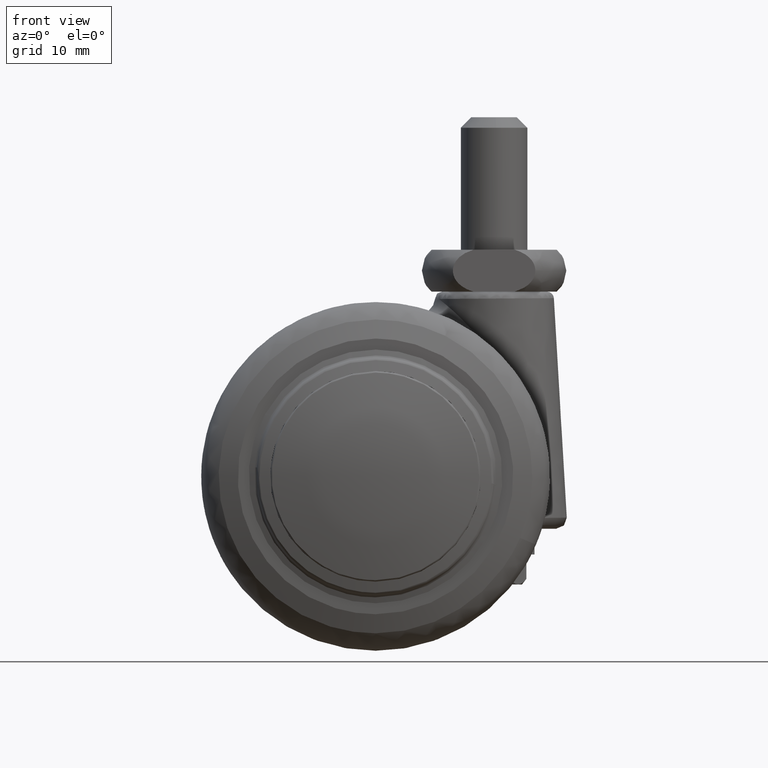
[diagram: clean part render]
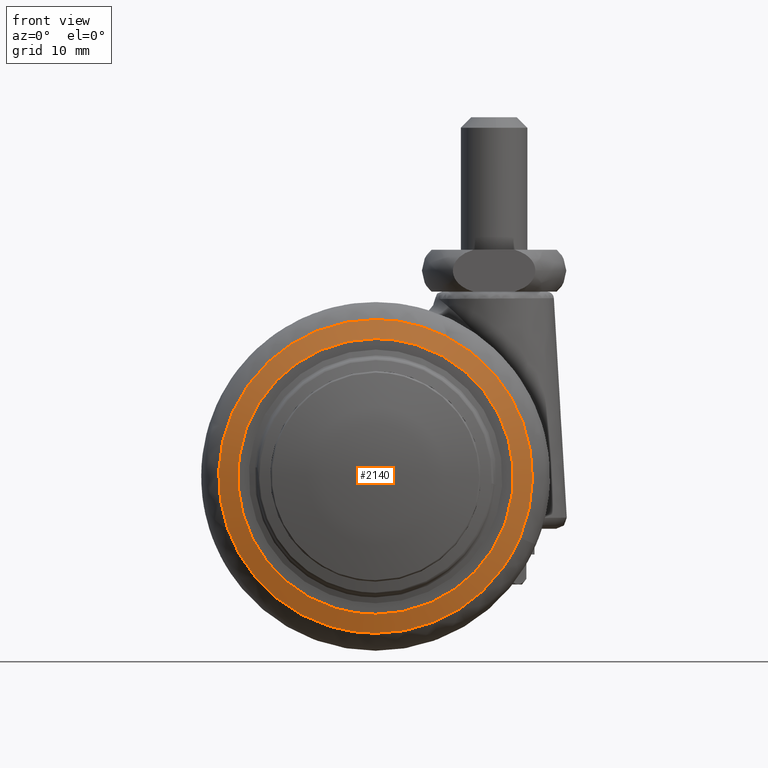
[diagram: same view with one face highlighted and labeled with its STEP entity id]
A machine part, front view. The second image highlights one B-rep face of the part: STEP entity #2140.
In plain terms, the highlighted face is a freeform B-spline surface patch.
Its self-contained STEP definition (entity closure, byte-faithful):
#1491=CARTESIAN_POINT('',(9.975672701248211,-20.052650238675671,20.167695820285779));
#1492=VERTEX_POINT('',#1491);
#1493=CARTESIAN_POINT('',(0.0,-20.052650239281650,22.500000010546600));
#1494=VERTEX_POINT('',#1493);
#1495=CARTESIAN_POINT('',(9.975672701248211,-20.052650238675664,20.167695820285783));
#1496=CARTESIAN_POINT('',(5.260481765112745,-20.052650239281647,22.500000010546604));
#1497=CARTESIAN_POINT('',(0.0,-20.052650239281650,22.500000010546600));
#1505=(BOUNDED_CURVE()B_SPLINE_CURVE(2,(#1495,#1496,#1497),.UNSPECIFIED.,.F.,.U.)B_SPLINE_CURVE_WITH_KNOTS((3,3),(0.424637790835269,0.500000000000000),.UNSPECIFIED.)CURVE()GEOMETRIC_REPRESENTATION_ITEM()RATIONAL_B_SPLINE_CURVE((0.876646594192813,0.911707679923397,1.0))REPRESENTATION_ITEM(''));
#1506=EDGE_CURVE('',#1492,#1494,#1505,.T.);
#1526=CARTESIAN_POINT('',(20.705216575500302,-20.052650239253548,-8.805907507993847));
#1527=VERTEX_POINT('',#1526);
#1541=CARTESIAN_POINT('',(0.0,-20.052650239281650,-22.500000010546589));
#1542=VERTEX_POINT('',#1541);
#1543=CARTESIAN_POINT('',(0.0,-20.052650239281650,-22.500000010546589));
#1544=CARTESIAN_POINT('',(14.881132990319578,-20.052650239281647,-22.500000010546600));
#1545=CARTESIAN_POINT('',(20.705216575500302,-20.052650239253552,-8.805907507993847));
#1553=(BOUNDED_CURVE()B_SPLINE_CURVE(2,(#1543,#1544,#1545),.UNSPECIFIED.,.F.,.U.)B_SPLINE_CURVE_WITH_KNOTS((3,3),(0.0,0.183550134662979),.UNSPECIFIED.)CURVE()GEOMETRIC_REPRESENTATION_ITEM()RATIONAL_B_SPLINE_CURVE((1.0,0.784957640979670,0.885683713610749))REPRESENTATION_ITEM(''));
#1554=EDGE_CURVE('',#1542,#1527,#1553,.T.);
#1556=CARTESIAN_POINT('',(0.0,-20.052650239281650,22.500000010546600));
#1557=CARTESIAN_POINT('',(-22.500000010546600,-20.052650239281654,22.500000010546600));
#1558=CARTESIAN_POINT('',(-22.500000010546600,-20.052650239281650,1.789254E-015));
#1559=CARTESIAN_POINT('',(-22.500000010546600,-20.052650239281654,-22.500000010546600));
#1560=CARTESIAN_POINT('',(0.0,-20.052650239281650,-22.500000010546589));
#1568=(BOUNDED_CURVE()B_SPLINE_CURVE(2,(#1556,#1557,#1558,#1559,#1560),.UNSPECIFIED.,.F.,.U.)B_SPLINE_CURVE_WITH_KNOTS((3,2,3),(0.500000000000000,0.750000000000000,1.0),.UNSPECIFIED.)CURVE()GEOMETRIC_REPRESENTATION_ITEM()RATIONAL_B_SPLINE_CURVE((1.0,0.707106781186547,1.0,0.707106781186547,1.0))REPRESENTATION_ITEM(''));
#1569=EDGE_CURVE('',#1494,#1542,#1568,.T.);
#1591=CARTESIAN_POINT('',(20.705216575500298,-20.052650239253545,-8.805907507993847));
#1592=CARTESIAN_POINT('',(22.500000010546593,-20.052650239281647,-4.585856400647058));
#1593=CARTESIAN_POINT('',(22.500000010546600,-20.052650239281650,1.789254E-015));
#1594=CARTESIAN_POINT('',(22.500000010546596,-20.052650239281643,13.972709978116622));
#1595=CARTESIAN_POINT('',(9.975672701248211,-20.052650238675664,20.167695820285783));
#1603=(BOUNDED_CURVE()B_SPLINE_CURVE(2,(#1591,#1592,#1593,#1594,#1595),.UNSPECIFIED.,.F.,.U.)B_SPLINE_CURVE_WITH_KNOTS((3,2,3),(0.183550134662979,0.250000000000000,0.424637790835269),.UNSPECIFIED.)CURVE()GEOMETRIC_REPRESENTATION_ITEM()RATIONAL_B_SPLINE_CURVE((0.885683713610749,0.922149140206877,1.0,0.795399101263150,0.876646594192813))REPRESENTATION_ITEM(''));
#1604=EDGE_CURVE('',#1527,#1492,#1603,.T.);
#2065=CARTESIAN_POINT('',(0.0,-21.081931999999899,-19.765886228730452));
#2066=VERTEX_POINT('',#2065);
#2067=CARTESIAN_POINT('',(0.0,-21.081931999999899,19.765886228730459));
#2068=VERTEX_POINT('',#2067);
#2069=CARTESIAN_POINT('',(0.0,-21.081931999999899,-19.765886228730452));
#2070=CARTESIAN_POINT('',(19.765886228730455,-21.081931999999892,-19.765886228730455));
#2071=CARTESIAN_POINT('',(19.765886228730452,-21.081931999999899,1.789254E-015));
#2072=CARTESIAN_POINT('',(19.765886228730455,-21.081931999999892,19.765886228730455));
#2073=CARTESIAN_POINT('',(0.0,-21.081931999999899,19.765886228730459));
#2081=(BOUNDED_CURVE()B_SPLINE_CURVE(2,(#2069,#2070,#2071,#2072,#2073),.UNSPECIFIED.,.F.,.U.)B_SPLINE_CURVE_WITH_KNOTS((3,2,3),(0.0,0.250000000000000,0.500000000000000),.UNSPECIFIED.)CURVE()GEOMETRIC_REPRESENTATION_ITEM()RATIONAL_B_SPLINE_CURVE((1.0,0.707106781186548,1.0,0.707106781186548,1.0))REPRESENTATION_ITEM(''));
#2082=EDGE_CURVE('',#2066,#2068,#2081,.T.);
#2084=CARTESIAN_POINT('',(0.0,-21.081931999999899,19.765886228730459));
#2085=CARTESIAN_POINT('',(-19.765886228730455,-21.081931999999892,19.765886228730455));
#2086=CARTESIAN_POINT('',(-19.765886228730452,-21.081931999999899,1.789254E-015));
#2087=CARTESIAN_POINT('',(-19.765886228730455,-21.081931999999892,-19.765886228730455));
#2088=CARTESIAN_POINT('',(0.0,-21.081931999999899,-19.765886228730452));
#2096=(BOUNDED_CURVE()B_SPLINE_CURVE(2,(#2084,#2085,#2086,#2087,#2088),.UNSPECIFIED.,.F.,.U.)B_SPLINE_CURVE_WITH_KNOTS((3,2,3),(0.500000000000000,0.750000000000000,1.0),.UNSPECIFIED.)CURVE()GEOMETRIC_REPRESENTATION_ITEM()RATIONAL_B_SPLINE_CURVE((1.0,0.707106781186548,1.0,0.707106781186548,1.0))REPRESENTATION_ITEM(''));
#2097=EDGE_CURVE('',#2068,#2066,#2096,.T.);
#2106=CARTESIAN_POINT('',(-23.529031152137861,-14.358802987607762,-23.529032246445652));
#2107=CARTESIAN_POINT('',(-12.279879532431531,-19.174364121992451,-24.559760207108795));
#2108=CARTESIAN_POINT('',(12.279867601254651,-19.174364121992451,-24.559760207108795));
#2109=CARTESIAN_POINT('',(23.529010210099933,-14.358811952515842,-23.529034165304342));
#2110=CARTESIAN_POINT('',(-24.559759164938963,-19.174364589547135,-12.279880153592352));
#2111=CARTESIAN_POINT('',(-12.842464883672150,-24.431162000000029,-12.842465480960200));
#2112=CARTESIAN_POINT('',(12.842452405885240,-24.431162000000029,-12.842465480960200));
#2113=CARTESIAN_POINT('',(24.559737393241551,-19.174374357104270,-12.279881198921638));
#2114=CARTESIAN_POINT('',(-24.559759164938963,-19.174364589547135,12.279879656306701));
#2115=CARTESIAN_POINT('',(-12.842464883672140,-24.431162000000029,12.842464960892110));
#2116=CARTESIAN_POINT('',(12.842452405885240,-24.431162000000029,12.842464960892110));
#2117=CARTESIAN_POINT('',(24.559737393241551,-19.174374357104270,12.279880701635944));
#2118=CARTESIAN_POINT('',(-23.529031232114985,-14.358803361260932,23.529031373591785));
#2119=CARTESIAN_POINT('',(-12.279879576000360,-19.174364529099652,24.559759299675136));
#2120=CARTESIAN_POINT('',(12.279867644823439,-19.174364529099652,24.559759299675136));
#2121=CARTESIAN_POINT('',(23.529010290077014,-14.358812326169089,23.529033292450432));
#2129=(BOUNDED_SURFACE()B_SPLINE_SURFACE(2,2,((#2106,#2110,#2114,#2118),(#2107,#2111,#2115,#2119),(#2108,#2112,#2116,#2120),(#2109,#2113,#2117,#2121)),.UNSPECIFIED.,.F.,.F.,.U.)B_SPLINE_SURFACE_WITH_KNOTS((3,1,3),(3,1,3),(9.826574003028870,34.408243677050592,58.989889467430118),(9.826572859764099,34.408243677050592,58.989913498878479),.UNSPECIFIED.)GEOMETRIC_REPRESENTATION_ITEM()RATIONAL_B_SPLINE_SURFACE(((1.091627173310557,1.045813584524542,1.045813584524542,1.091627169600026),(1.045813588786015,1.0,1.0,1.045813585075484),(1.045813588786015,1.0,1.0,1.045813585075484),(1.091627084285301,1.045813495499286,1.045813495499286,1.091627080574769)))REPRESENTATION_ITEM('')SURFACE());
#2130=ORIENTED_EDGE('',*,*,#1554,.T.);
#2131=ORIENTED_EDGE('',*,*,#1604,.T.);
#2132=ORIENTED_EDGE('',*,*,#1506,.T.);
#2133=ORIENTED_EDGE('',*,*,#1569,.T.);
#2134=EDGE_LOOP('',(#2130,#2131,#2132,#2133));
#2135=FACE_OUTER_BOUND('',#2134,.T.);
#2136=ORIENTED_EDGE('',*,*,#2082,.F.);
#2137=ORIENTED_EDGE('',*,*,#2097,.F.);
#2138=EDGE_LOOP('',(#2136,#2137));
#2139=FACE_BOUND('',#2138,.T.);
#2140=ADVANCED_FACE('',(#2135,#2139),#2129,.T.);